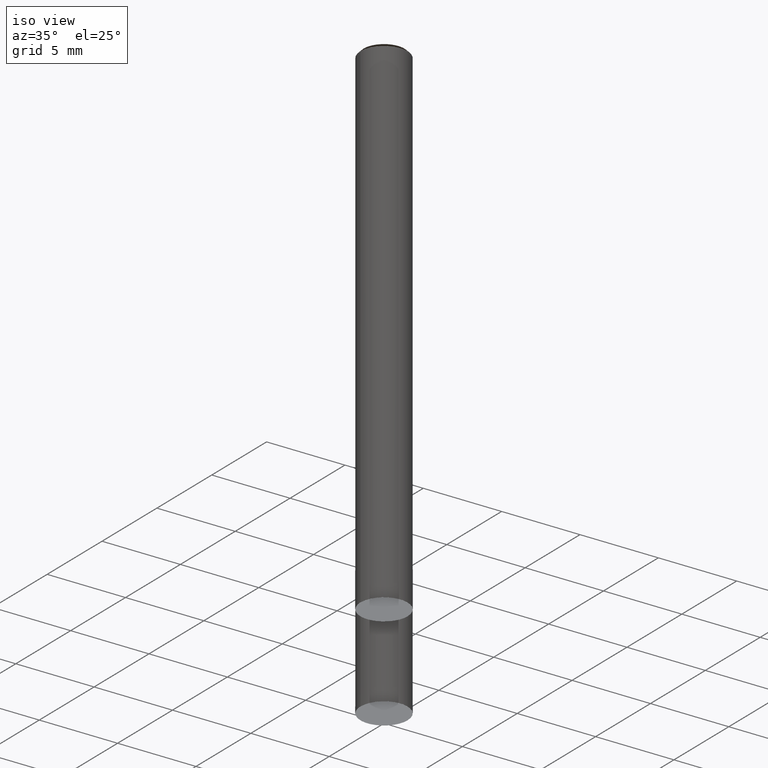
[diagram: clean part render]
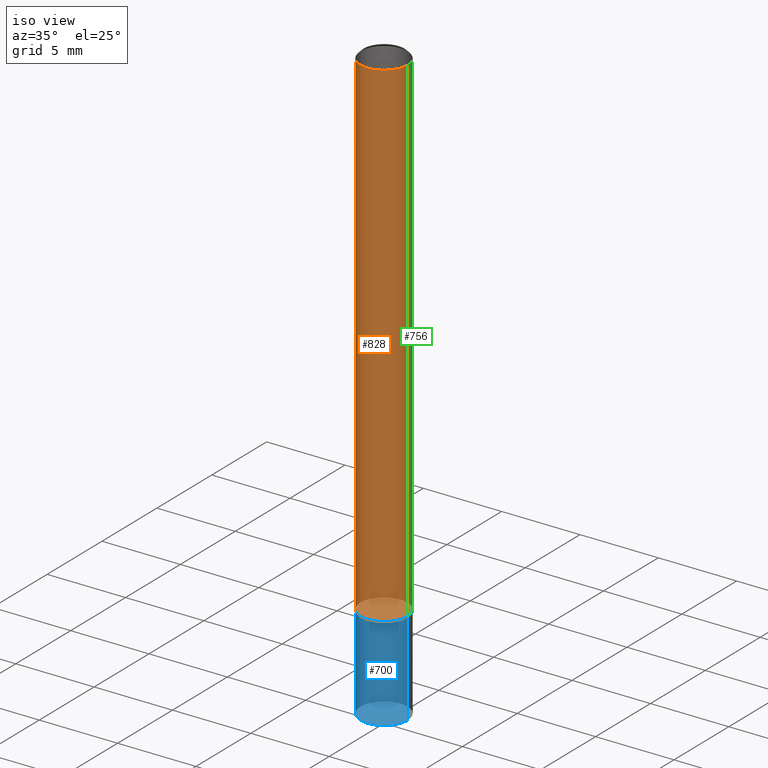
[diagram: same view with three faces highlighted in distinct colors, each labeled with its STEP entity id]
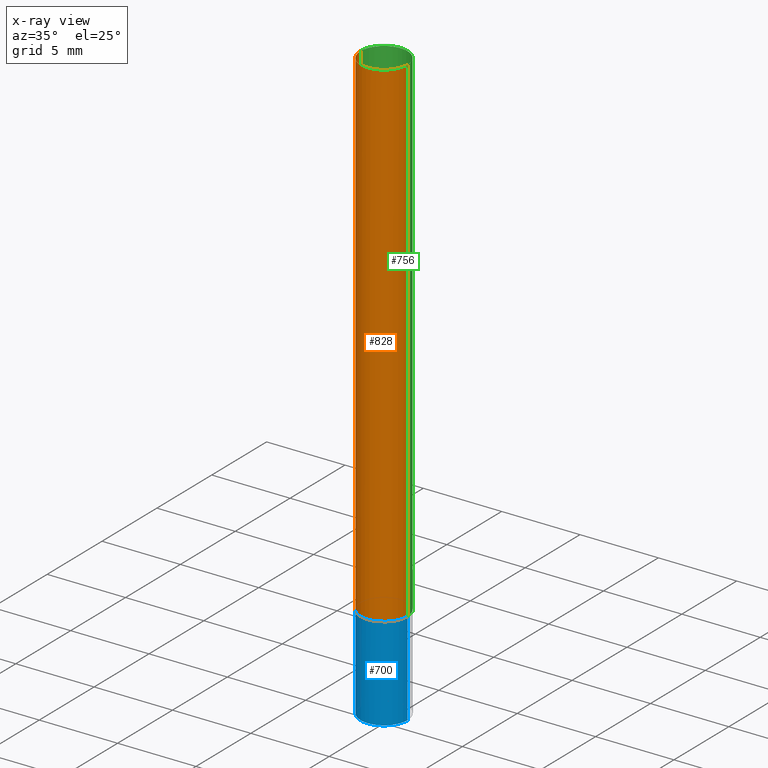
[diagram: x-ray of the same camera — body ghosted, the three highlighted faces saturated]
A machine part, iso view with three faces highlighted in distinct colors.
The next image is the same camera in x-ray (body ghosted, the three faces saturated) — at least one of them is partly hidden behind the body in this view.
Their STEP definitions:

[orange] entity #828 — the highlighted face is a freeform B-spline surface patch.
#579=CARTESIAN_POINT('',(1.5,0.0,0.0));
#583=CARTESIAN_POINT('',(-1.5,0.0,0.0));
#587=CARTESIAN_POINT('',(-1.5,-1.5,0.0));
#588=CARTESIAN_POINT('',(0.0,-1.5,0.0));
#589=CARTESIAN_POINT('',(1.5,-1.5,0.0));
#590=CARTESIAN_POINT('',(1.5,0.0,31.8));
#594=CARTESIAN_POINT('',(-1.5,0.0,31.8));
#601=CARTESIAN_POINT('',(-1.5,-1.5,31.8));
#602=CARTESIAN_POINT('',(0.0,-1.5,31.8));
#603=CARTESIAN_POINT('',(1.5,-1.5,31.8));
#809=(
BOUNDED_SURFACE()
B_SPLINE_SURFACE(1,2,(
(#583,#587,#588,#589,#579),
(#594,#601,#602,#603,#590)
), .UNSPECIFIED.,.F.,.F.,.F.)
B_SPLINE_SURFACE_WITH_KNOTS((2,2),(3,2,3),(
0.0,1.0),(
0.0,0.5,1.0), .UNSPECIFIED.)
GEOMETRIC_REPRESENTATION_ITEM()
RATIONAL_B_SPLINE_SURFACE(((1.0,0.707106781187,1.0,0.707106781187,1.0),
(1.0,0.707106781187,1.0,0.707106781187,1.0)
))
REPRESENTATION_ITEM('')
SURFACE()
);
#810=(
BOUNDED_CURVE()
B_SPLINE_CURVE(2,(#579,#589,#588,#587,#583),.UNSPECIFIED.,.F.,.F.)
B_SPLINE_CURVE_WITH_KNOTS((3,2,3),
(0.0,0.5,1.0),.UNSPECIFIED.)
CURVE()
GEOMETRIC_REPRESENTATION_ITEM()
RATIONAL_B_SPLINE_CURVE((1.0,0.707106781187,1.0,0.707106781187,1.0))
REPRESENTATION_ITEM('')
);
#811=(
BOUNDED_CURVE()
B_SPLINE_CURVE(1,(#583,#594),.UNSPECIFIED.,.F.,.F.)
B_SPLINE_CURVE_WITH_KNOTS((2,2),
(0.0,1.0),.UNSPECIFIED.)
CURVE()
GEOMETRIC_REPRESENTATION_ITEM()
RATIONAL_B_SPLINE_CURVE((1.0,1.0))
REPRESENTATION_ITEM('')
);
#812=(
BOUNDED_CURVE()
B_SPLINE_CURVE(2,(#594,#601,#602,#603,#590),.UNSPECIFIED.,.F.,.F.)
B_SPLINE_CURVE_WITH_KNOTS((3,2,3),
(0.0,0.5,1.0),.UNSPECIFIED.)
CURVE()
GEOMETRIC_REPRESENTATION_ITEM()
RATIONAL_B_SPLINE_CURVE((1.0,0.707106781187,1.0,0.707106781187,1.0))
REPRESENTATION_ITEM('')
);
#813=(
BOUNDED_CURVE()
B_SPLINE_CURVE(1,(#590,#579),.UNSPECIFIED.,.F.,.F.)
B_SPLINE_CURVE_WITH_KNOTS((2,2),
(0.0,1.0),.UNSPECIFIED.)
CURVE()
GEOMETRIC_REPRESENTATION_ITEM()
RATIONAL_B_SPLINE_CURVE((1.0,1.0))
REPRESENTATION_ITEM('')
);
#814=VERTEX_POINT('',#579);
#815=VERTEX_POINT('',#583);
#816=VERTEX_POINT('',#590);
#817=VERTEX_POINT('',#594);
#818=EDGE_CURVE('',#814,#815,#810,.T.);
#819=EDGE_CURVE('',#815,#817,#811,.T.);
#820=EDGE_CURVE('',#817,#816,#812,.T.);
#821=EDGE_CURVE('',#816,#814,#813,.T.);
#822=ORIENTED_EDGE('',*,*,#818,.T.);
#823=ORIENTED_EDGE('',*,*,#819,.T.);
#824=ORIENTED_EDGE('',*,*,#820,.T.);
#825=ORIENTED_EDGE('',*,*,#821,.T.);
#826=EDGE_LOOP('',(#822,#823,#824,#825));
#827=FACE_OUTER_BOUND('',#826,.T.);
#828=ADVANCED_FACE('',(#827),#809,.T.);

[blue] entity #700 — the highlighted face is a freeform B-spline surface patch.
#109=CARTESIAN_POINT('',(0.0,-1.5,-6.0));
#574=CARTESIAN_POINT('',(1.5,0.0,-6.0));
#578=CARTESIAN_POINT('',(-1.5,0.0,-6.0));
#579=CARTESIAN_POINT('',(1.5,0.0,0.0));
#583=CARTESIAN_POINT('',(-1.5,0.0,0.0));
#585=CARTESIAN_POINT('',(-1.5,-1.5,-6.0));
#586=CARTESIAN_POINT('',(1.5,-1.5,-6.0));
#587=CARTESIAN_POINT('',(-1.5,-1.5,0.0));
#588=CARTESIAN_POINT('',(0.0,-1.5,0.0));
#589=CARTESIAN_POINT('',(1.5,-1.5,0.0));
#681=(
BOUNDED_SURFACE()
B_SPLINE_SURFACE(1,2,(
(#578,#585,#109,#586,#574),
(#583,#587,#588,#589,#579)
), .UNSPECIFIED.,.F.,.F.,.F.)
B_SPLINE_SURFACE_WITH_KNOTS((2,2),(3,2,3),(
0.0,1.0),(
0.0,0.5,1.0), .UNSPECIFIED.)
GEOMETRIC_REPRESENTATION_ITEM()
RATIONAL_B_SPLINE_SURFACE(((1.0,0.707106781187,1.0,0.707106781187,1.0),
(1.0,0.707106781187,1.0,0.707106781187,1.0)
))
REPRESENTATION_ITEM('')
SURFACE()
);
#682=(
BOUNDED_CURVE()
B_SPLINE_CURVE(2,(#574,#586,#109,#585,#578),.UNSPECIFIED.,.F.,.F.)
B_SPLINE_CURVE_WITH_KNOTS((3,2,3),
(0.0,0.5,1.0),.UNSPECIFIED.)
CURVE()
GEOMETRIC_REPRESENTATION_ITEM()
RATIONAL_B_SPLINE_CURVE((1.0,0.707106781187,1.0,0.707106781187,1.0))
REPRESENTATION_ITEM('')
);
#683=(
BOUNDED_CURVE()
B_SPLINE_CURVE(1,(#578,#583),.UNSPECIFIED.,.F.,.F.)
B_SPLINE_CURVE_WITH_KNOTS((2,2),
(0.0,1.0),.UNSPECIFIED.)
CURVE()
GEOMETRIC_REPRESENTATION_ITEM()
RATIONAL_B_SPLINE_CURVE((1.0,1.0))
REPRESENTATION_ITEM('')
);
#684=(
BOUNDED_CURVE()
B_SPLINE_CURVE(2,(#583,#587,#588,#589,#579),.UNSPECIFIED.,.F.,.F.)
B_SPLINE_CURVE_WITH_KNOTS((3,2,3),
(0.0,0.5,1.0),.UNSPECIFIED.)
CURVE()
GEOMETRIC_REPRESENTATION_ITEM()
RATIONAL_B_SPLINE_CURVE((1.0,0.707106781187,1.0,0.707106781187,1.0))
REPRESENTATION_ITEM('')
);
#685=(
BOUNDED_CURVE()
B_SPLINE_CURVE(1,(#579,#574),.UNSPECIFIED.,.F.,.F.)
B_SPLINE_CURVE_WITH_KNOTS((2,2),
(0.0,1.0),.UNSPECIFIED.)
CURVE()
GEOMETRIC_REPRESENTATION_ITEM()
RATIONAL_B_SPLINE_CURVE((1.0,1.0))
REPRESENTATION_ITEM('')
);
#686=VERTEX_POINT('',#574);
#687=VERTEX_POINT('',#578);
#688=VERTEX_POINT('',#579);
#689=VERTEX_POINT('',#583);
#690=EDGE_CURVE('',#686,#687,#682,.T.);
#691=EDGE_CURVE('',#687,#689,#683,.T.);
#692=EDGE_CURVE('',#689,#688,#684,.T.);
#693=EDGE_CURVE('',#688,#686,#685,.T.);
#694=ORIENTED_EDGE('',*,*,#690,.T.);
#695=ORIENTED_EDGE('',*,*,#691,.T.);
#696=ORIENTED_EDGE('',*,*,#692,.T.);
#697=ORIENTED_EDGE('',*,*,#693,.T.);
#698=EDGE_LOOP('',(#694,#695,#696,#697));
#699=FACE_OUTER_BOUND('',#698,.T.);
#700=ADVANCED_FACE('',(#699),#681,.T.);

[green] entity #756 — the highlighted face is a freeform B-spline surface patch.
#579=CARTESIAN_POINT('',(1.5,0.0,0.0));
#580=CARTESIAN_POINT('',(1.5,1.5,0.0));
#581=CARTESIAN_POINT('',(0.0,1.5,0.0));
#582=CARTESIAN_POINT('',(-1.5,1.5,0.0));
#583=CARTESIAN_POINT('',(-1.5,0.0,0.0));
#590=CARTESIAN_POINT('',(1.5,0.0,31.8));
#591=CARTESIAN_POINT('',(1.5,1.5,31.8));
#592=CARTESIAN_POINT('',(0.0,1.5,31.8));
#593=CARTESIAN_POINT('',(-1.5,1.5,31.8));
#594=CARTESIAN_POINT('',(-1.5,0.0,31.8));
#737=(
BOUNDED_SURFACE()
B_SPLINE_SURFACE(1,2,(
(#579,#580,#581,#582,#583),
(#590,#591,#592,#593,#594)
), .UNSPECIFIED.,.F.,.F.,.F.)
B_SPLINE_SURFACE_WITH_KNOTS((2,2),(3,2,3),(
0.0,1.0),(
0.0,0.5,1.0), .UNSPECIFIED.)
GEOMETRIC_REPRESENTATION_ITEM()
RATIONAL_B_SPLINE_SURFACE(((1.0,0.707106781187,1.0,0.707106781187,1.0),
(1.0,0.707106781187,1.0,0.707106781187,1.0)
))
REPRESENTATION_ITEM('')
SURFACE()
);
#738=(
BOUNDED_CURVE()
B_SPLINE_CURVE(2,(#583,#582,#581,#580,#579),.UNSPECIFIED.,.F.,.F.)
B_SPLINE_CURVE_WITH_KNOTS((3,2,3),
(0.0,0.5,1.0),.UNSPECIFIED.)
CURVE()
GEOMETRIC_REPRESENTATION_ITEM()
RATIONAL_B_SPLINE_CURVE((1.0,0.707106781187,1.0,0.707106781187,1.0))
REPRESENTATION_ITEM('')
);
#739=(
BOUNDED_CURVE()
B_SPLINE_CURVE(1,(#579,#590),.UNSPECIFIED.,.F.,.F.)
B_SPLINE_CURVE_WITH_KNOTS((2,2),
(0.0,1.0),.UNSPECIFIED.)
CURVE()
GEOMETRIC_REPRESENTATION_ITEM()
RATIONAL_B_SPLINE_CURVE((1.0,1.0))
REPRESENTATION_ITEM('')
);
#740=(
BOUNDED_CURVE()
B_SPLINE_CURVE(2,(#590,#591,#592,#593,#594),.UNSPECIFIED.,.F.,.F.)
B_SPLINE_CURVE_WITH_KNOTS((3,2,3),
(0.0,0.5,1.0),.UNSPECIFIED.)
CURVE()
GEOMETRIC_REPRESENTATION_ITEM()
RATIONAL_B_SPLINE_CURVE((1.0,0.707106781187,1.0,0.707106781187,1.0))
REPRESENTATION_ITEM('')
);
#741=(
BOUNDED_CURVE()
B_SPLINE_CURVE(1,(#594,#583),.UNSPECIFIED.,.F.,.F.)
B_SPLINE_CURVE_WITH_KNOTS((2,2),
(0.0,1.0),.UNSPECIFIED.)
CURVE()
GEOMETRIC_REPRESENTATION_ITEM()
RATIONAL_B_SPLINE_CURVE((1.0,1.0))
REPRESENTATION_ITEM('')
);
#742=VERTEX_POINT('',#579);
#743=VERTEX_POINT('',#583);
#744=VERTEX_POINT('',#590);
#745=VERTEX_POINT('',#594);
#746=EDGE_CURVE('',#743,#742,#738,.T.);
#747=EDGE_CURVE('',#742,#744,#739,.T.);
#748=EDGE_CURVE('',#744,#745,#740,.T.);
#749=EDGE_CURVE('',#745,#743,#741,.T.);
#750=ORIENTED_EDGE('',*,*,#746,.T.);
#751=ORIENTED_EDGE('',*,*,#747,.T.);
#752=ORIENTED_EDGE('',*,*,#748,.T.);
#753=ORIENTED_EDGE('',*,*,#749,.T.);
#754=EDGE_LOOP('',(#750,#751,#752,#753));
#755=FACE_OUTER_BOUND('',#754,.T.);
#756=ADVANCED_FACE('',(#755),#737,.T.);